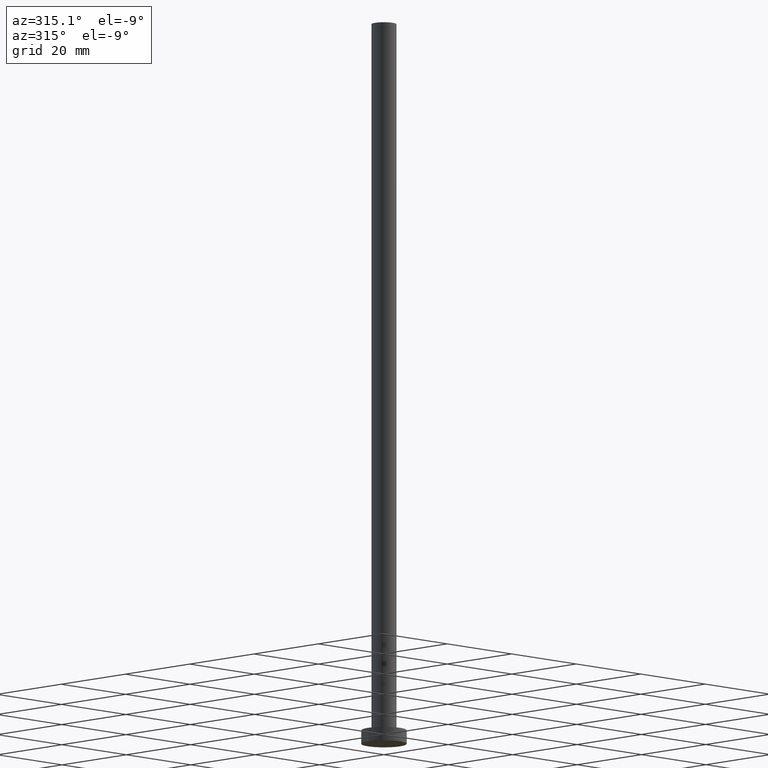
[diagram: clean part render]
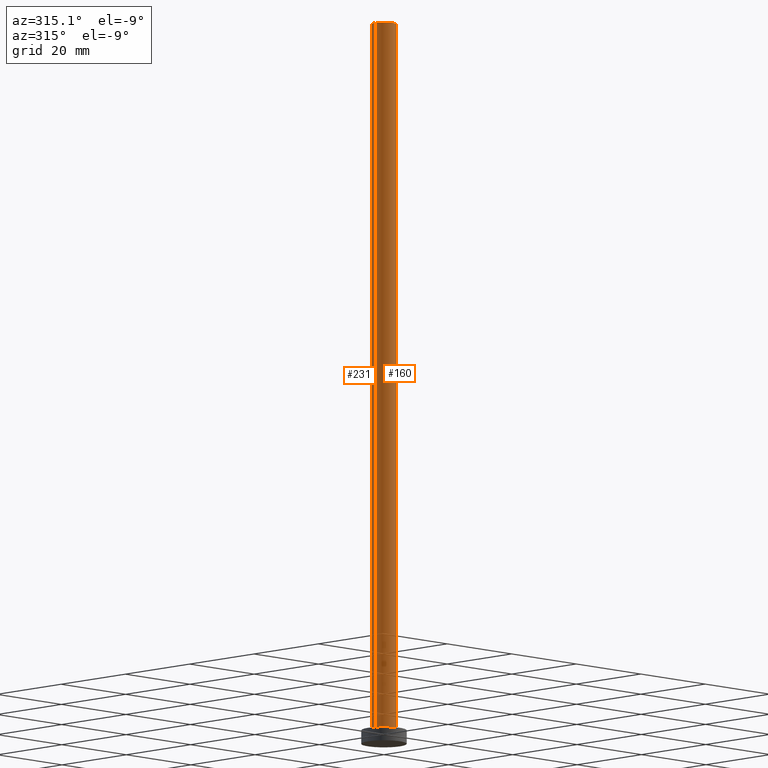
[diagram: same view with one multi-face feature highlighted, each face labeled with its STEP entity id]
A machine part, auxiliary view. The highlighted faces form ONE feature: a constant-radius fillet chain: 2 tangent blend faces with common blend radius 2.75 mm. The faces share edges in the B-rep.
Their STEP definitions:
[1] entity #160 (Cylinder):
#12 = ORIENTED_EDGE ( 'NONE', *, *, #46, .F. ) ;
#22 = DIRECTION ( 'NONE',  ( -0.000000000000000000, -0.000000000000000000, -1.000000000000000000 ) ) ;
#32 = CARTESIAN_POINT ( 'NONE',  ( -2.750000000000000000, 0.000000000000000000, 3.000000000000000000 ) ) ;
#36 = VECTOR ( 'NONE', #22, 1000.000000000000000 ) ;
#37 = DIRECTION ( 'NONE',  ( 0.000000000000000000, 0.000000000000000000, 1.000000000000000000 ) ) ;
#38 = DIRECTION ( 'NONE',  ( -0.000000000000000000, -0.000000000000000000, -1.000000000000000000 ) ) ;
#46 = EDGE_CURVE ( 'NONE', #47, #146, #93, .T. ) ;
#47 = VERTEX_POINT ( 'NONE', #169 ) ;
#57 = FACE_OUTER_BOUND ( 'NONE', #165, .T. ) ;
#75 = CARTESIAN_POINT ( 'NONE',  ( 0.000000000000000000, 0.000000000000000000, 160.0000000000000000 ) ) ;
#89 = VERTEX_POINT ( 'NONE', #210 ) ;
#93 = LINE ( 'NONE', #115, #153 ) ;
#95 = DIRECTION ( 'NONE',  ( 0.000000000000000000, 0.000000000000000000, 1.000000000000000000 ) ) ;
#104 = VERTEX_POINT ( 'NONE', #32 ) ;
#114 = EDGE_CURVE ( 'NONE', #89, #47, #126, .T. ) ;
#115 = CARTESIAN_POINT ( 'NONE',  ( 2.750000000000000000, 3.367778697655221012E-16, 160.0000000000000000 ) ) ;
#120 = CARTESIAN_POINT ( 'NONE',  ( 0.000000000000000000, 0.000000000000000000, 3.000000000000000000 ) ) ;
#126 = CIRCLE ( 'NONE', #253, 2.750000000000000000 ) ;
#146 = VERTEX_POINT ( 'NONE', #213 ) ;
#152 = ORIENTED_EDGE ( 'NONE', *, *, #240, .T. ) ;
#153 = VECTOR ( 'NONE', #184, 1000.000000000000000 ) ;
#158 = AXIS2_PLACEMENT_3D ( 'NONE', #120, #37, #179 ) ;
#160 = ADVANCED_FACE ( 'NONE', ( #57 ), #217, .T. ) ;
#165 = EDGE_LOOP ( 'NONE', ( #12, #172, #170, #152 ) ) ;
#169 = CARTESIAN_POINT ( 'NONE',  ( 2.750000000000000000, 3.367778697655221012E-16, 160.0000000000000000 ) ) ;
#170 = ORIENTED_EDGE ( 'NONE', *, *, #181, .T. ) ;
#172 = ORIENTED_EDGE ( 'NONE', *, *, #114, .F. ) ;
#173 = DIRECTION ( 'NONE',  ( 1.000000000000000000, 0.000000000000000000, 0.000000000000000000 ) ) ;
#179 = DIRECTION ( 'NONE',  ( 1.000000000000000000, 0.000000000000000000, 0.000000000000000000 ) ) ;
#181 = EDGE_CURVE ( 'NONE', #89, #104, #197, .T. ) ;
#184 = DIRECTION ( 'NONE',  ( -0.000000000000000000, -0.000000000000000000, -1.000000000000000000 ) ) ;
#191 = CARTESIAN_POINT ( 'NONE',  ( 0.000000000000000000, 0.000000000000000000, 160.0000000000000000 ) ) ;
#197 = LINE ( 'NONE', #237, #36 ) ;
#210 = CARTESIAN_POINT ( 'NONE',  ( -2.750000000000000000, 0.000000000000000000, 160.0000000000000000 ) ) ;
#213 = CARTESIAN_POINT ( 'NONE',  ( 2.750000000000000000, 3.367778697655221012E-16, 3.000000000000000000 ) ) ;
#217 = CYLINDRICAL_SURFACE ( 'NONE', #244, 2.750000000000000000 ) ;
#237 = CARTESIAN_POINT ( 'NONE',  ( -2.750000000000000000, 0.000000000000000000, 160.0000000000000000 ) ) ;
#239 = DIRECTION ( 'NONE',  ( -1.000000000000000000, 0.000000000000000000, 0.000000000000000000 ) ) ;
#240 = EDGE_CURVE ( 'NONE', #104, #146, #245, .T. ) ;
#244 = AXIS2_PLACEMENT_3D ( 'NONE', #75, #38, #239 ) ;
#245 = CIRCLE ( 'NONE', #158, 2.750000000000000000 ) ;
#253 = AXIS2_PLACEMENT_3D ( 'NONE', #191, #95, #173 ) ;
[2] entity #231 (Cylinder):
#17 = ORIENTED_EDGE ( 'NONE', *, *, #250, .F. ) ;
#22 = DIRECTION ( 'NONE',  ( -0.000000000000000000, -0.000000000000000000, -1.000000000000000000 ) ) ;
#32 = CARTESIAN_POINT ( 'NONE',  ( -2.750000000000000000, 0.000000000000000000, 3.000000000000000000 ) ) ;
#36 = VECTOR ( 'NONE', #22, 1000.000000000000000 ) ;
#45 = ORIENTED_EDGE ( 'NONE', *, *, #77, .T. ) ;
#46 = EDGE_CURVE ( 'NONE', #47, #146, #93, .T. ) ;
#47 = VERTEX_POINT ( 'NONE', #169 ) ;
#67 = ORIENTED_EDGE ( 'NONE', *, *, #46, .T. ) ;
#71 = ORIENTED_EDGE ( 'NONE', *, *, #181, .F. ) ;
#74 = AXIS2_PLACEMENT_3D ( 'NONE', #147, #206, #186 ) ;
#76 = CARTESIAN_POINT ( 'NONE',  ( 0.000000000000000000, 0.000000000000000000, 160.0000000000000000 ) ) ;
#77 = EDGE_CURVE ( 'NONE', #146, #104, #241, .T. ) ;
#89 = VERTEX_POINT ( 'NONE', #210 ) ;
#93 = LINE ( 'NONE', #115, #153 ) ;
#97 = CARTESIAN_POINT ( 'NONE',  ( 0.000000000000000000, 0.000000000000000000, 160.0000000000000000 ) ) ;
#98 = CYLINDRICAL_SURFACE ( 'NONE', #167, 2.750000000000000000 ) ;
#104 = VERTEX_POINT ( 'NONE', #32 ) ;
#115 = CARTESIAN_POINT ( 'NONE',  ( 2.750000000000000000, 3.367778697655221012E-16, 160.0000000000000000 ) ) ;
#116 = DIRECTION ( 'NONE',  ( -0.000000000000000000, -0.000000000000000000, -1.000000000000000000 ) ) ;
#118 = DIRECTION ( 'NONE',  ( 0.000000000000000000, 0.000000000000000000, 1.000000000000000000 ) ) ;
#146 = VERTEX_POINT ( 'NONE', #213 ) ;
#147 = CARTESIAN_POINT ( 'NONE',  ( 0.000000000000000000, 0.000000000000000000, 3.000000000000000000 ) ) ;
#153 = VECTOR ( 'NONE', #184, 1000.000000000000000 ) ;
#167 = AXIS2_PLACEMENT_3D ( 'NONE', #76, #116, #194 ) ;
#169 = CARTESIAN_POINT ( 'NONE',  ( 2.750000000000000000, 3.367778697655221012E-16, 160.0000000000000000 ) ) ;
#175 = DIRECTION ( 'NONE',  ( 1.000000000000000000, 0.000000000000000000, 0.000000000000000000 ) ) ;
#181 = EDGE_CURVE ( 'NONE', #89, #104, #197, .T. ) ;
#184 = DIRECTION ( 'NONE',  ( -0.000000000000000000, -0.000000000000000000, -1.000000000000000000 ) ) ;
#186 = DIRECTION ( 'NONE',  ( 1.000000000000000000, 0.000000000000000000, 0.000000000000000000 ) ) ;
#194 = DIRECTION ( 'NONE',  ( -1.000000000000000000, 0.000000000000000000, 0.000000000000000000 ) ) ;
#196 = CIRCLE ( 'NONE', #226, 2.750000000000000000 ) ;
#197 = LINE ( 'NONE', #237, #36 ) ;
#206 = DIRECTION ( 'NONE',  ( 0.000000000000000000, 0.000000000000000000, 1.000000000000000000 ) ) ;
#210 = CARTESIAN_POINT ( 'NONE',  ( -2.750000000000000000, 0.000000000000000000, 160.0000000000000000 ) ) ;
#213 = CARTESIAN_POINT ( 'NONE',  ( 2.750000000000000000, 3.367778697655221012E-16, 3.000000000000000000 ) ) ;
#218 = FACE_OUTER_BOUND ( 'NONE', #230, .T. ) ;
#226 = AXIS2_PLACEMENT_3D ( 'NONE', #97, #118, #175 ) ;
#230 = EDGE_LOOP ( 'NONE', ( #17, #67, #45, #71 ) ) ;
#231 = ADVANCED_FACE ( 'NONE', ( #218 ), #98, .T. ) ;
#237 = CARTESIAN_POINT ( 'NONE',  ( -2.750000000000000000, 0.000000000000000000, 160.0000000000000000 ) ) ;
#241 = CIRCLE ( 'NONE', #74, 2.750000000000000000 ) ;
#250 = EDGE_CURVE ( 'NONE', #47, #89, #196, .T. ) ;